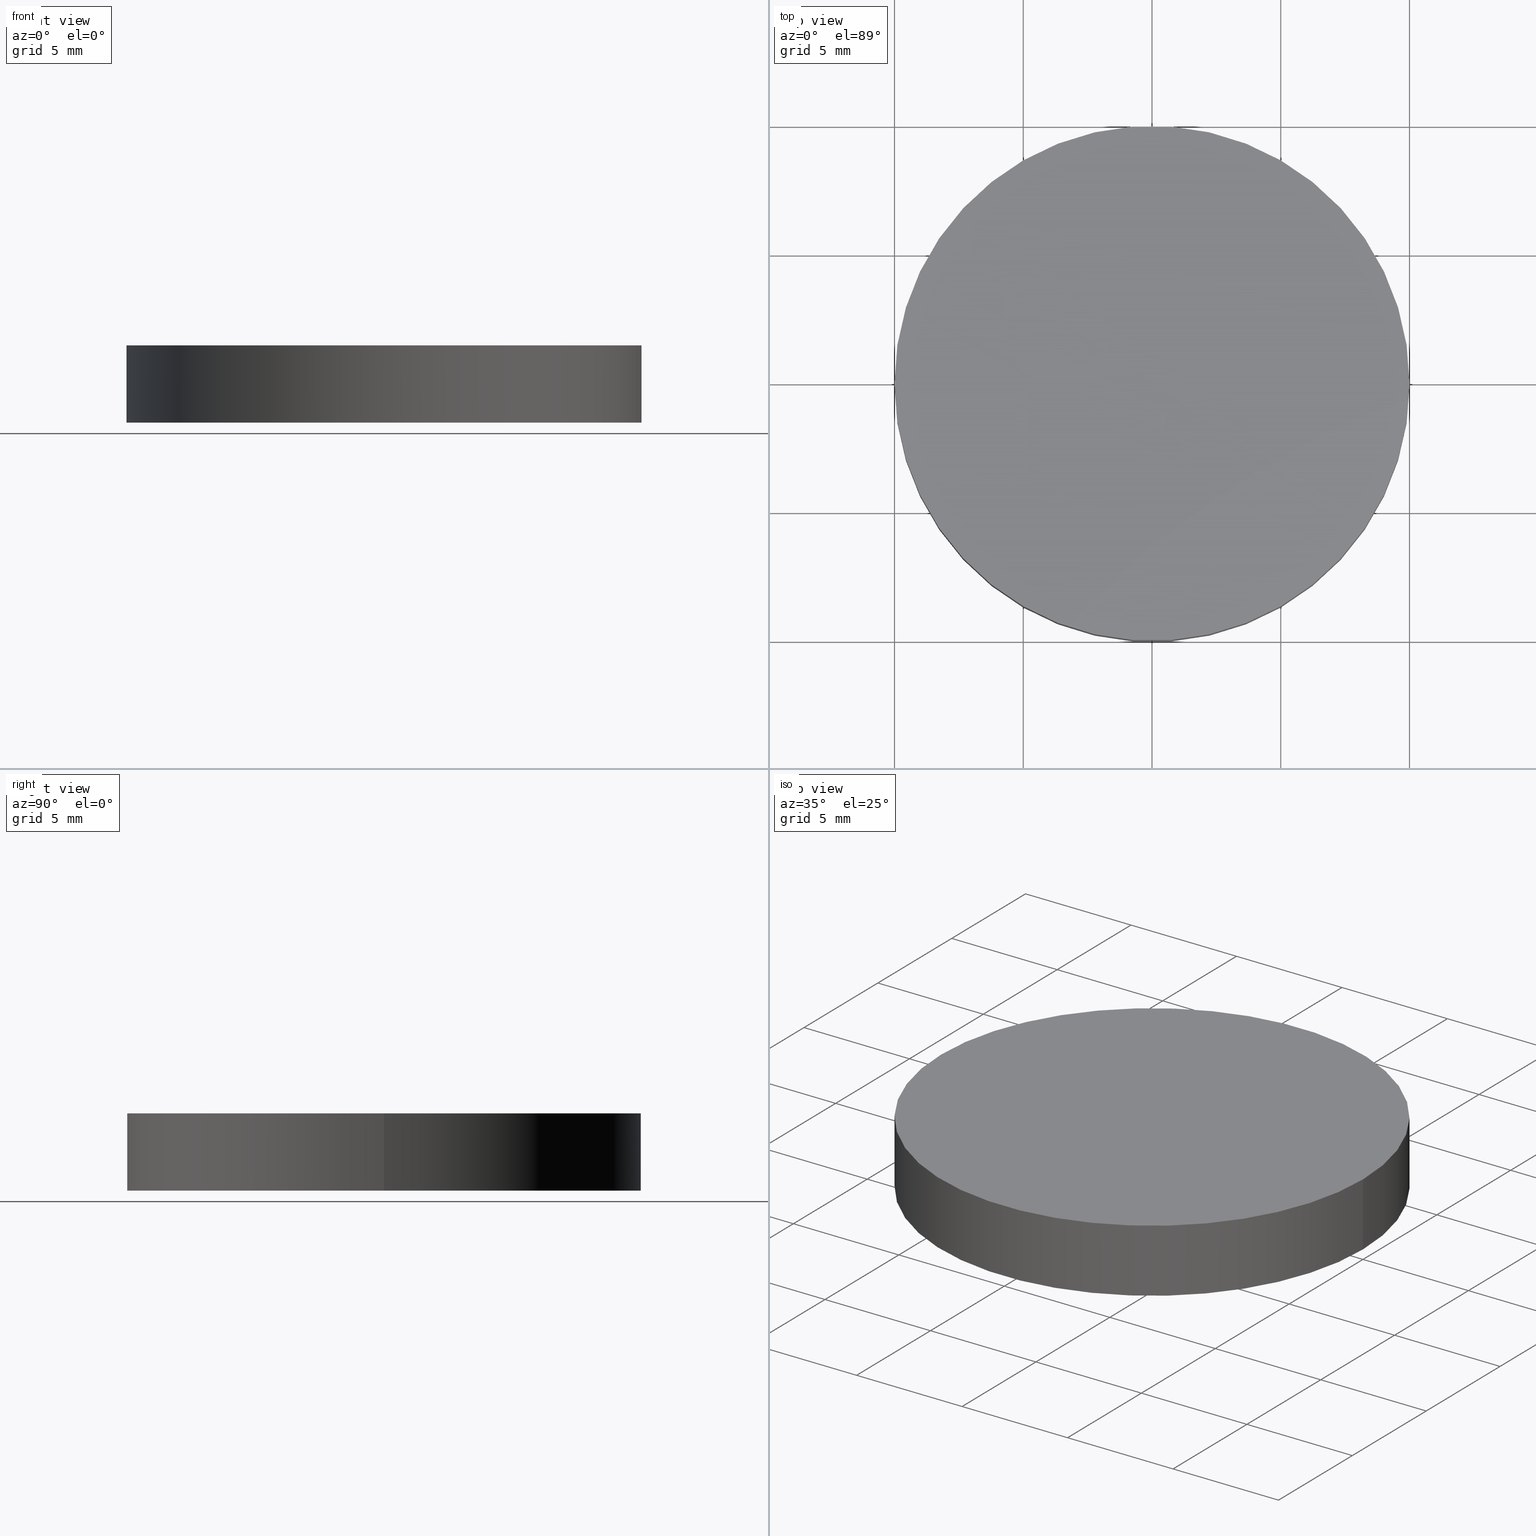
[diagram: canonical four-view strip — front | top / right | iso, engineering-drawing reading convention]
A machine part, canonical four-view strip (front | top / right | iso — engineering-drawing reading convention). The complete STEP part file that produces these views, byte-faithful:
ISO-10303-21;
HEADER;
FILE_DESCRIPTION (( 'STEP AP203' ),
    '1' );
FILE_NAME ('416048.STEP',
    '2019-08-22T02:28:44',
    ( '' ),
    ( '' ),
    'SwSTEP 2.0',
    'SolidWorks 2016',
    '' );
FILE_SCHEMA (( 'CONFIG_CONTROL_DESIGN' ));
ENDSEC;

DATA;
#1 = CC_DESIGN_PERSON_AND_ORGANIZATION_ASSIGNMENT ( #34, #200, ( #123 ) ) ;
#2 = CARTESIAN_POINT ( 'NONE',  ( 10.00000000000000000, 1.224646799147353300E-015, 0.0000000000000000000 ) ) ;
#3 = CC_DESIGN_PERSON_AND_ORGANIZATION_ASSIGNMENT ( #103, #245, ( #74 ) ) ;
#4 = PERSON_AND_ORGANIZATION ( #144, #19 ) ;
#5 = DIRECTION ( 'NONE',  ( 1.000000000000000000, 0.0000000000000000000, 0.0000000000000000000 ) ) ;
#6 = DIRECTION ( 'NONE',  ( -0.0000000000000000000, -0.0000000000000000000, -1.000000000000000000 ) ) ;
#7 = DATE_TIME_ROLE ( 'creation_date' ) ;
#8 = CALENDAR_DATE ( 2019, 22, 8 ) ;
#9 = APPLICATION_PROTOCOL_DEFINITION ( 'international standard', 'config_control_design', 1994, #127 ) ;
#10 = MECHANICAL_CONTEXT ( 'NONE', #224, 'mechanical' ) ;
#11 = EDGE_LOOP ( 'NONE', ( #203, #20, #157, #44 ) ) ;
#12 =( NAMED_UNIT ( * ) SI_UNIT ( $, .STERADIAN. ) SOLID_ANGLE_UNIT ( ) );
#13 = PERSON_AND_ORGANIZATION ( #144, #19 ) ;
#14 = APPROVAL_DATE_TIME ( #155, #204 ) ;
#15 = CC_DESIGN_DATE_AND_TIME_ASSIGNMENT ( #159, #198, ( #123 ) ) ;
#16 = CIRCLE ( 'NONE', #181, 10.00000000000000000 ) ;
#17 = EDGE_CURVE ( 'NONE', #126, #213, #64, .T. ) ;
#18 = CALENDAR_DATE ( 2019, 22, 8 ) ;
#19 = ORGANIZATION ( 'δָ��', 'δָ��', '' ) ;
#20 = ORIENTED_EDGE ( 'NONE', *, *, #186, .T. ) ;
#21 = CARTESIAN_POINT ( 'NONE',  ( -10.00000000000000000, 0.0000000000000000000, 0.0000000000000000000 ) ) ;
#22 = APPROVAL_DATE_TIME ( #29, #88 ) ;
#23 = CYLINDRICAL_SURFACE ( 'NONE', #162, 10.00000000000000000 ) ;
#24 = CARTESIAN_POINT ( 'NONE',  ( 0.0000000000000000000, 0.0000000000000000000, 3.000000000000000000 ) ) ;
#25 = CARTESIAN_POINT ( 'NONE',  ( 0.0000000000000000000, 0.0000000000000000000, 0.0000000000000000000 ) ) ;
#26 = CC_DESIGN_PERSON_AND_ORGANIZATION_ASSIGNMENT ( #199, #161, ( #79 ) ) ;
#27 = DIRECTION ( 'NONE',  ( 0.0000000000000000000, 0.0000000000000000000, 1.000000000000000000 ) ) ;
#28 = MANIFOLD_SOLID_BREP ( '͹̨-����1', #187 ) ;
#29 = DATE_AND_TIME ( #66, #52 ) ;
#30 = ORIENTED_EDGE ( 'NONE', *, *, #150, .F. ) ;
#31 = CC_DESIGN_PERSON_AND_ORGANIZATION_ASSIGNMENT ( #49, #63, ( #74 ) ) ;
#32 = CALENDAR_DATE ( 2019, 22, 8 ) ;
#33 = EDGE_LOOP ( 'NONE', ( #130, #147 ) ) ;
#34 = PERSON_AND_ORGANIZATION ( #144, #19 ) ;
#35 = ADVANCED_FACE ( 'NONE', ( #194 ), #39, .T. ) ;
#36 = EDGE_CURVE ( 'NONE', #213, #251, #222, .T. ) ;
#37 = PERSON_AND_ORGANIZATION ( #144, #19 ) ;
#38 = CARTESIAN_POINT ( 'NONE',  ( 0.0000000000000000000, 0.0000000000000000000, 0.0000000000000000000 ) ) ;
#39 = PLANE ( 'NONE',  #231 ) ;
#40 = CC_DESIGN_PERSON_AND_ORGANIZATION_ASSIGNMENT ( #172, #48, ( #62 ) ) ;
#41 = DIRECTION ( 'NONE',  ( 1.000000000000000000, 0.0000000000000000000, -0.0000000000000000000 ) ) ;
#42 = PRODUCT_DEFINITION_SHAPE ( 'NONE', 'NONE',  #197 ) ;
#43 = CARTESIAN_POINT ( 'NONE',  ( 0.0000000000000000000, 0.0000000000000000000, 0.0000000000000000000 ) ) ;
#44 = ORIENTED_EDGE ( 'NONE', *, *, #36, .F. ) ;
#45 = APPROVAL_STATUS ( 'not_yet_approved' ) ;
#46 = PERSON_AND_ORGANIZATION_ROLE ( 'creator' ) ;
#47 = AXIS2_PLACEMENT_3D ( 'NONE', #38, #119, #139 ) ;
#48 = PERSON_AND_ORGANIZATION_ROLE ( 'design_owner' ) ;
#49 = PERSON_AND_ORGANIZATION ( #144, #19 ) ;
#50 = PRODUCT_DEFINITION_FORMATION_WITH_SPECIFIED_SOURCE ( '�κ�', '', #180, .NOT_KNOWN. ) ;
#51 = CIRCLE ( 'NONE', #47, 10.00000000000000000 ) ;
#52 = LOCAL_TIME ( 10, 28, 44.00000000000000000, #56 ) ;
#53 = DATE_AND_TIME ( #32, #122 ) ;
#54 = CARTESIAN_POINT ( 'NONE',  ( 0.0000000000000000000, 0.0000000000000000000, 3.000000000000000000 ) ) ;
#55 = AXIS2_PLACEMENT_3D ( 'NONE', #24, #158, #115 ) ;
#56 = COORDINATED_UNIVERSAL_TIME_OFFSET ( 8, 0, .AHEAD. ) ;
#57 = DIRECTION ( 'NONE',  ( 1.000000000000000000, 0.0000000000000000000, 0.0000000000000000000 ) ) ;
#58 = SECURITY_CLASSIFICATION_LEVEL ( 'unclassified' ) ;
#59 = DATE_TIME_ROLE ( 'classification_date' ) ;
#60 = APPROVAL_PERSON_ORGANIZATION ( #169, #204, #104 ) ;
#61 = APPROVAL_STATUS ( 'not_yet_approved' ) ;
#62 = PRODUCT ( '416048', '416048', '', ( #84 ) ) ;
#63 = PERSON_AND_ORGANIZATION_ROLE ( 'design_supplier' ) ;
#64 = CIRCLE ( 'NONE', #138, 10.00000000000000000 ) ;
#65 = APPROVAL_ROLE ( '' ) ;
#66 = CALENDAR_DATE ( 2019, 22, 8 ) ;
#67 = EDGE_CURVE ( 'NONE', #213, #126, #16, .T. ) ;
#68 = ORIENTED_EDGE ( 'NONE', *, *, #156, .F. ) ;
#69 = CC_DESIGN_SECURITY_CLASSIFICATION ( #117, ( #50 ) ) ;
#70 = AXIS2_PLACEMENT_3D ( 'NONE', #43, #167, #99 ) ;
#71 = CALENDAR_DATE ( 2019, 22, 8 ) ;
#72 = FACE_OUTER_BOUND ( 'NONE', #170, .T. ) ;
#73 = LOCAL_TIME ( 10, 28, 44.00000000000000000, #178 ) ;
#74 = PRODUCT_DEFINITION_FORMATION_WITH_SPECIFIED_SOURCE ( '�κ�', '', #62, .NOT_KNOWN. ) ;
#75 = DIRECTION ( 'NONE',  ( 0.0000000000000000000, 0.0000000000000000000, 1.000000000000000000 ) ) ;
#76 = APPROVAL_DATE_TIME ( #129, #228 ) ;
#77 = PRODUCT_DEFINITION_SHAPE ( 'NONE', 'NONE',  #123 ) ;
#78 = DIRECTION ( 'NONE',  ( -0.0000000000000000000, -0.0000000000000000000, -1.000000000000000000 ) ) ;
#79 = SECURITY_CLASSIFICATION ( '', '', #58 ) ;
#80 = APPLICATION_PROTOCOL_DEFINITION ( 'international standard', 'config_control_design', 1994, #248 ) ;
#81 =( GEOMETRIC_REPRESENTATION_CONTEXT ( 3 ) GLOBAL_UNCERTAINTY_ASSIGNED_CONTEXT ( ( #164 ) ) GLOBAL_UNIT_ASSIGNED_CONTEXT ( ( #102, #125, #12 ) ) REPRESENTATION_CONTEXT ( 'NONE', 'WORKASPACE' ) );
#82 = CARTESIAN_POINT ( 'NONE',  ( -10.00000000000000000, 0.0000000000000000000, 3.000000000000000000 ) ) ;
#83 = APPROVAL_STATUS ( 'not_yet_approved' ) ;
#84 = MECHANICAL_CONTEXT ( 'NONE', #127, 'mechanical' ) ;
#85 = CALENDAR_DATE ( 2019, 22, 8 ) ;
#86 = AXIS2_PLACEMENT_3D ( 'NONE', #219, #27, #142 ) ;
#87 = COORDINATED_UNIVERSAL_TIME_OFFSET ( 8, 0, .AHEAD. ) ;
#88 = APPROVAL ( #83, 'δָ��' ) ;
#89 = APPROVAL_PERSON_ORGANIZATION ( #4, #228, #195 ) ;
#90 = VECTOR ( 'NONE', #6, 1000.000000000000000 ) ;
#91 = CC_DESIGN_DATE_AND_TIME_ASSIGNMENT ( #184, #182, ( #79 ) ) ;
#92 = PRODUCT_RELATED_PRODUCT_CATEGORY ( 'detail', '', ( #62 ) ) ;
#93 = VERTEX_POINT ( 'NONE', #2 ) ;
#94 = CC_DESIGN_APPROVAL ( #88, ( #50 ) ) ;
#95 = DIRECTION ( 'NONE',  ( 0.0000000000000000000, 0.0000000000000000000, 1.000000000000000000 ) ) ;
#96 = FACE_OUTER_BOUND ( 'NONE', #11, .T. ) ;
#97 = APPROVAL ( #146, 'δָ��' ) ;
#98 = CARTESIAN_POINT ( 'NONE',  ( 0.0000000000000000000, 0.0000000000000000000, 3.000000000000000000 ) ) ;
#99 = DIRECTION ( 'NONE',  ( 1.000000000000000000, 0.0000000000000000000, 0.0000000000000000000 ) ) ;
#100 = APPROVAL_DATE_TIME ( #135, #241 ) ;
#101 = APPROVAL_ROLE ( '' ) ;
#102 =( LENGTH_UNIT ( ) NAMED_UNIT ( * ) SI_UNIT ( .MILLI., .METRE. ) );
#103 = PERSON_AND_ORGANIZATION ( #144, #19 ) ;
#104 = APPROVAL_ROLE ( '' ) ;
#105 = FACE_OUTER_BOUND ( 'NONE', #166, .T. ) ;
#106 = CARTESIAN_POINT ( 'NONE',  ( 10.00000000000000000, 1.224646799147353300E-015, 3.000000000000000000 ) ) ;
#107 = LOCAL_TIME ( 10, 28, 44.00000000000000000, #209 ) ;
#108 = APPROVAL ( #45, 'δָ��' ) ;
#109 = LOCAL_TIME ( 10, 28, 44.00000000000000000, #253 ) ;
#110 = CC_DESIGN_PERSON_AND_ORGANIZATION_ASSIGNMENT ( #137, #163, ( #180 ) ) ;
#111 = CC_DESIGN_PERSON_AND_ORGANIZATION_ASSIGNMENT ( #229, #202, ( #50 ) ) ;
#112 = CALENDAR_DATE ( 2019, 22, 8 ) ;
#113 = PERSON_AND_ORGANIZATION ( #144, #19 ) ;
#114 = VECTOR ( 'NONE', #176, 1000.000000000000000 ) ;
#115 = DIRECTION ( 'NONE',  ( -1.000000000000000000, 0.0000000000000000000, 0.0000000000000000000 ) ) ;
#116 = DIRECTION ( 'NONE',  ( 0.0000000000000000000, 0.0000000000000000000, 1.000000000000000000 ) ) ;
#117 = SECURITY_CLASSIFICATION ( '', '', #218 ) ;
#118 = APPROVAL_PERSON_ORGANIZATION ( #225, #88, #244 ) ;
#119 = DIRECTION ( 'NONE',  ( 0.0000000000000000000, 0.0000000000000000000, 1.000000000000000000 ) ) ;
#120 = DIRECTION ( 'NONE',  ( 1.000000000000000000, 0.0000000000000000000, 0.0000000000000000000 ) ) ;
#121 = APPROVAL_ROLE ( '' ) ;
#122 = LOCAL_TIME ( 10, 28, 44.00000000000000000, #87 ) ;
#123 = PRODUCT_DEFINITION ( 'δ֪', '', #50, #233 ) ;
#124 = DIRECTION ( 'NONE',  ( 0.0000000000000000000, 0.0000000000000000000, 1.000000000000000000 ) ) ;
#125 =( NAMED_UNIT ( * ) PLANE_ANGLE_UNIT ( ) SI_UNIT ( $, .RADIAN. ) );
#126 = VERTEX_POINT ( 'NONE', #239 ) ;
#127 = APPLICATION_CONTEXT ( 'configuration controlled 3d designs of mechanical parts and assemblies' ) ;
#128 = APPROVAL_STATUS ( 'not_yet_approved' ) ;
#129 = DATE_AND_TIME ( #85, #205 ) ;
#130 = ORIENTED_EDGE ( 'NONE', *, *, #67, .T. ) ;
#131 = LOCAL_TIME ( 10, 28, 44.00000000000000000, #210 ) ;
#132 = PERSON_AND_ORGANIZATION ( #144, #19 ) ;
#133 = CC_DESIGN_APPROVAL ( #108, ( #79 ) ) ;
#134 = APPROVAL_DATE_TIME ( #53, #97 ) ;
#135 = DATE_AND_TIME ( #18, #109 ) ;
#136 = CARTESIAN_POINT ( 'NONE',  ( 0.0000000000000000000, 0.0000000000000000000, 3.000000000000000000 ) ) ;
#137 = PERSON_AND_ORGANIZATION ( #144, #19 ) ;
#138 = AXIS2_PLACEMENT_3D ( 'NONE', #54, #177, #57 ) ;
#139 = DIRECTION ( 'NONE',  ( 1.000000000000000000, 0.0000000000000000000, 0.0000000000000000000 ) ) ;
#140 = LOCAL_TIME ( 10, 28, 44.00000000000000000, #151 ) ;
#141 = APPLICATION_CONTEXT ( 'configuration controlled 3d designs of mechanical parts and assemblies' ) ;
#142 = DIRECTION ( 'NONE',  ( 1.000000000000000000, 0.0000000000000000000, 0.0000000000000000000 ) ) ;
#143 = APPROVAL_PERSON_ORGANIZATION ( #160, #241, #101 ) ;
#144 = PERSON ( 'δָ��', 'δָ��', 'δָ��', ('δָ��'), ('δָ��'), ('δָ��') ) ;
#145 = PERSON_AND_ORGANIZATION_ROLE ( 'creator' ) ;
#146 = APPROVAL_STATUS ( 'not_yet_approved' ) ;
#147 = ORIENTED_EDGE ( 'NONE', *, *, #17, .T. ) ;
#148 = CC_DESIGN_DATE_AND_TIME_ASSIGNMENT ( #190, #59, ( #117 ) ) ;
#149 = CC_DESIGN_SECURITY_CLASSIFICATION ( #79, ( #74 ) ) ;
#150 = EDGE_CURVE ( 'NONE', #93, #251, #152, .T. ) ;
#151 = COORDINATED_UNIVERSAL_TIME_OFFSET ( 8, 0, .AHEAD. ) ;
#152 = CIRCLE ( 'NONE', #223, 10.00000000000000000 ) ;
#153 = CC_DESIGN_APPROVAL ( #97, ( #197 ) ) ;
#154 = ADVANCED_FACE ( 'NONE', ( #96 ), #23, .T. ) ;
#155 = DATE_AND_TIME ( #206, #131 ) ;
#156 = EDGE_CURVE ( 'NONE', #251, #93, #51, .T. ) ;
#157 = ORIENTED_EDGE ( 'NONE', *, *, #150, .T. ) ;
#158 = DIRECTION ( 'NONE',  ( -0.0000000000000000000, -0.0000000000000000000, -1.000000000000000000 ) ) ;
#159 = DATE_AND_TIME ( #71, #237 ) ;
#160 = PERSON_AND_ORGANIZATION ( #144, #19 ) ;
#161 = PERSON_AND_ORGANIZATION_ROLE ( 'classification_officer' ) ;
#162 = AXIS2_PLACEMENT_3D ( 'NONE', #98, #78, #212 ) ;
#163 = PERSON_AND_ORGANIZATION_ROLE ( 'design_owner' ) ;
#164 = UNCERTAINTY_MEASURE_WITH_UNIT (LENGTH_MEASURE( 1.000000000000000100E-005 ), #102, 'distance_accuracy_value', 'NONE');
#165 = APPLICATION_PROTOCOL_DEFINITION ( 'international standard', 'config_control_design', 1994, #141 ) ;
#166 = EDGE_LOOP ( 'NONE', ( #238, #208, #235, #232 ) ) ;
#167 = DIRECTION ( 'NONE',  ( 0.0000000000000000000, 0.0000000000000000000, 1.000000000000000000 ) ) ;
#168 = LOCAL_TIME ( 10, 28, 44.00000000000000000, #247 ) ;
#169 = PERSON_AND_ORGANIZATION ( #144, #19 ) ;
#170 = EDGE_LOOP ( 'NONE', ( #68, #30 ) ) ;
#171 = CALENDAR_DATE ( 2019, 22, 8 ) ;
#172 = PERSON_AND_ORGANIZATION ( #144, #19 ) ;
#173 = CARTESIAN_POINT ( 'NONE',  ( 0.0000000000000000000, 0.0000000000000000000, 3.000000000000000000 ) ) ;
#174 = COORDINATED_UNIVERSAL_TIME_OFFSET ( 8, 0, .AHEAD. ) ;
#175 = CC_DESIGN_DATE_AND_TIME_ASSIGNMENT ( #220, #7, ( #197 ) ) ;
#176 = DIRECTION ( 'NONE',  ( -0.0000000000000000000, -0.0000000000000000000, -1.000000000000000000 ) ) ;
#177 = DIRECTION ( 'NONE',  ( 0.0000000000000000000, 0.0000000000000000000, 1.000000000000000000 ) ) ;
#178 = COORDINATED_UNIVERSAL_TIME_OFFSET ( 8, 0, .AHEAD. ) ;
#179 = PERSON_AND_ORGANIZATION_ROLE ( 'classification_officer' ) ;
#180 = PRODUCT ( '416048', '416048', '', ( #10 ) ) ;
#181 = AXIS2_PLACEMENT_3D ( 'NONE', #136, #95, #5 ) ;
#182 = DATE_TIME_ROLE ( 'classification_date' ) ;
#183 = APPROVAL_DATE_TIME ( #188, #108 ) ;
#184 = DATE_AND_TIME ( #227, #140 ) ;
#185 = ADVANCED_FACE ( 'NONE', ( #105 ), #189, .T. ) ;
#186 = EDGE_CURVE ( 'NONE', #126, #93, #252, .T. ) ;
#187 = CLOSED_SHELL ( 'NONE', ( #154, #185, #35, #230 ) ) ;
#188 = DATE_AND_TIME ( #112, #168 ) ;
#189 = CYLINDRICAL_SURFACE ( 'NONE', #55, 10.00000000000000000 ) ;
#190 = DATE_AND_TIME ( #171, #107 ) ;
#191 = CARTESIAN_POINT ( 'NONE',  ( -10.00000000000000000, 0.0000000000000000000, 3.000000000000000000 ) ) ;
#192 = PLANE ( 'NONE',  #236 ) ;
#193 = COORDINATED_UNIVERSAL_TIME_OFFSET ( 8, 0, .AHEAD. ) ;
#194 = FACE_OUTER_BOUND ( 'NONE', #33, .T. ) ;
#195 = APPROVAL_ROLE ( '' ) ;
#196 = APPROVAL_STATUS ( 'not_yet_approved' ) ;
#197 = PRODUCT_DEFINITION ( 'δ֪', '', #74, #250 ) ;
#198 = DATE_TIME_ROLE ( 'creation_date' ) ;
#199 = PERSON_AND_ORGANIZATION ( #144, #19 ) ;
#200 = PERSON_AND_ORGANIZATION_ROLE ( 'creator' ) ;
#201 = CC_DESIGN_PERSON_AND_ORGANIZATION_ASSIGNMENT ( #132, #145, ( #50 ) ) ;
#202 = PERSON_AND_ORGANIZATION_ROLE ( 'design_supplier' ) ;
#203 = ORIENTED_EDGE ( 'NONE', *, *, #17, .F. ) ;
#204 = APPROVAL ( #128, 'δָ��' ) ;
#205 = LOCAL_TIME ( 10, 28, 44.00000000000000000, #193 ) ;
#206 = CALENDAR_DATE ( 2019, 22, 8 ) ;
#207 = ADVANCED_BREP_SHAPE_REPRESENTATION ( '416048', ( #28, #70 ), #81 ) ;
#208 = ORIENTED_EDGE ( 'NONE', *, *, #67, .F. ) ;
#209 = COORDINATED_UNIVERSAL_TIME_OFFSET ( 8, 0, .AHEAD. ) ;
#210 = COORDINATED_UNIVERSAL_TIME_OFFSET ( 8, 0, .AHEAD. ) ;
#211 = CC_DESIGN_PERSON_AND_ORGANIZATION_ASSIGNMENT ( #234, #46, ( #197 ) ) ;
#212 = DIRECTION ( 'NONE',  ( -1.000000000000000000, 0.0000000000000000000, 0.0000000000000000000 ) ) ;
#213 = VERTEX_POINT ( 'NONE', #82 ) ;
#214 = PRODUCT_RELATED_PRODUCT_CATEGORY ( 'detail', '', ( #180 ) ) ;
#215 = CARTESIAN_POINT ( 'NONE',  ( 0.0000000000000000000, 0.0000000000000000000, 0.0000000000000000000 ) ) ;
#216 = APPROVAL_PERSON_ORGANIZATION ( #37, #108, #65 ) ;
#217 = SHAPE_DEFINITION_REPRESENTATION ( #77, #207 ) ;
#218 = SECURITY_CLASSIFICATION_LEVEL ( 'unclassified' ) ;
#219 = CARTESIAN_POINT ( 'NONE',  ( 0.0000000000000000000, 0.0000000000000000000, 0.0000000000000000000 ) ) ;
#220 = DATE_AND_TIME ( #8, #73 ) ;
#221 = DIRECTION ( 'NONE',  ( 1.000000000000000000, 0.0000000000000000000, -0.0000000000000000000 ) ) ;
#222 = LINE ( 'NONE', #191, #114 ) ;
#223 = AXIS2_PLACEMENT_3D ( 'NONE', #215, #75, #120 ) ;
#224 = APPLICATION_CONTEXT ( 'configuration controlled 3d designs of mechanical parts and assemblies' ) ;
#225 = PERSON_AND_ORGANIZATION ( #144, #19 ) ;
#226 = CC_DESIGN_APPROVAL ( #241, ( #117 ) ) ;
#227 = CALENDAR_DATE ( 2019, 22, 8 ) ;
#228 = APPROVAL ( #61, 'δָ��' ) ;
#229 = PERSON_AND_ORGANIZATION ( #144, #19 ) ;
#230 = ADVANCED_FACE ( 'NONE', ( #72 ), #192, .F. ) ;
#231 = AXIS2_PLACEMENT_3D ( 'NONE', #173, #116, #41 ) ;
#232 = ORIENTED_EDGE ( 'NONE', *, *, #156, .T. ) ;
#233 = DESIGN_CONTEXT ( 'detailed design', #248, 'design' ) ;
#234 = PERSON_AND_ORGANIZATION ( #144, #19 ) ;
#235 = ORIENTED_EDGE ( 'NONE', *, *, #36, .T. ) ;
#236 = AXIS2_PLACEMENT_3D ( 'NONE', #25, #124, #221 ) ;
#237 = LOCAL_TIME ( 10, 28, 44.00000000000000000, #174 ) ;
#238 = ORIENTED_EDGE ( 'NONE', *, *, #186, .F. ) ;
#239 = CARTESIAN_POINT ( 'NONE',  ( 10.00000000000000000, 1.224646799147353300E-015, 3.000000000000000000 ) ) ;
#240 = APPROVAL_PERSON_ORGANIZATION ( #113, #97, #121 ) ;
#241 = APPROVAL ( #196, 'δָ��' ) ;
#242 = APPLICATION_PROTOCOL_DEFINITION ( 'international standard', 'config_control_design', 1994, #224 ) ;
#243 = CC_DESIGN_APPROVAL ( #228, ( #123 ) ) ;
#244 = APPROVAL_ROLE ( '' ) ;
#245 = PERSON_AND_ORGANIZATION_ROLE ( 'creator' ) ;
#246 = CC_DESIGN_PERSON_AND_ORGANIZATION_ASSIGNMENT ( #13, #179, ( #117 ) ) ;
#247 = COORDINATED_UNIVERSAL_TIME_OFFSET ( 8, 0, .AHEAD. ) ;
#248 = APPLICATION_CONTEXT ( 'configuration controlled 3d designs of mechanical parts and assemblies' ) ;
#249 = CC_DESIGN_APPROVAL ( #204, ( #74 ) ) ;
#250 = DESIGN_CONTEXT ( 'detailed design', #141, 'design' ) ;
#251 = VERTEX_POINT ( 'NONE', #21 ) ;
#252 = LINE ( 'NONE', #106, #90 ) ;
#253 = COORDINATED_UNIVERSAL_TIME_OFFSET ( 8, 0, .AHEAD. ) ;
ENDSEC;
END-ISO-10303-21;
